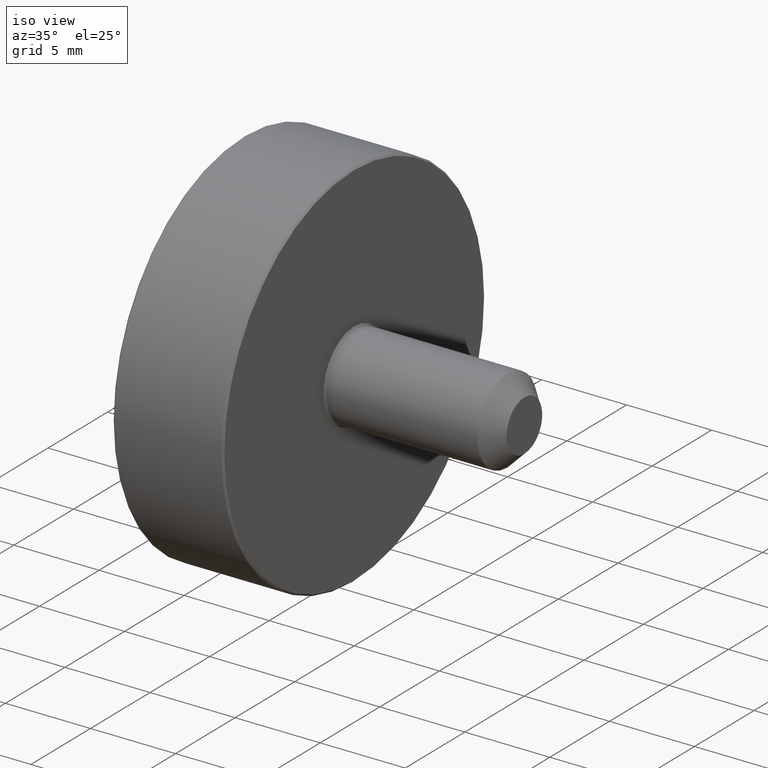
[diagram: clean part render]
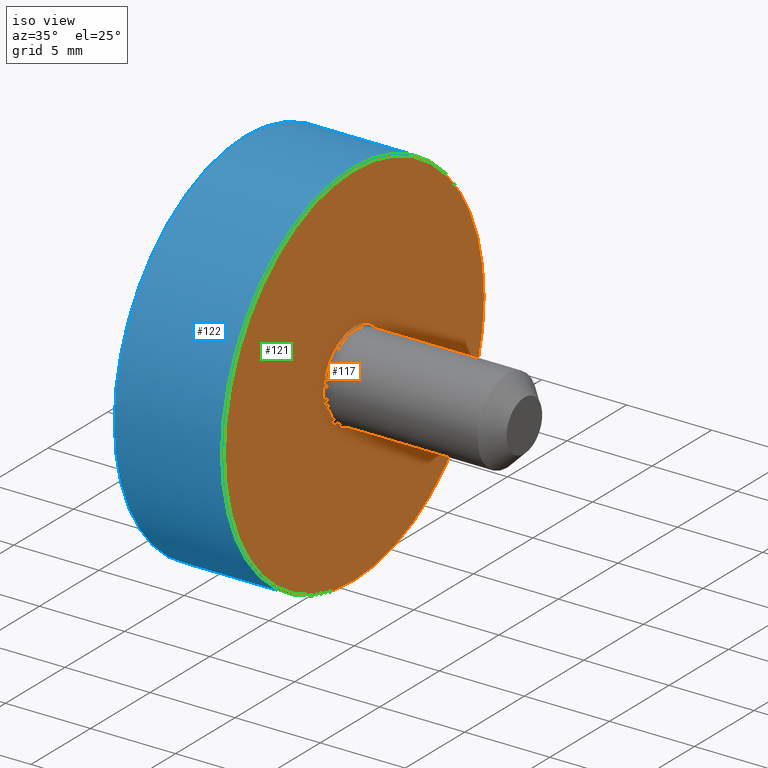
[diagram: same view with three faces highlighted in distinct colors, each labeled with its STEP entity id]
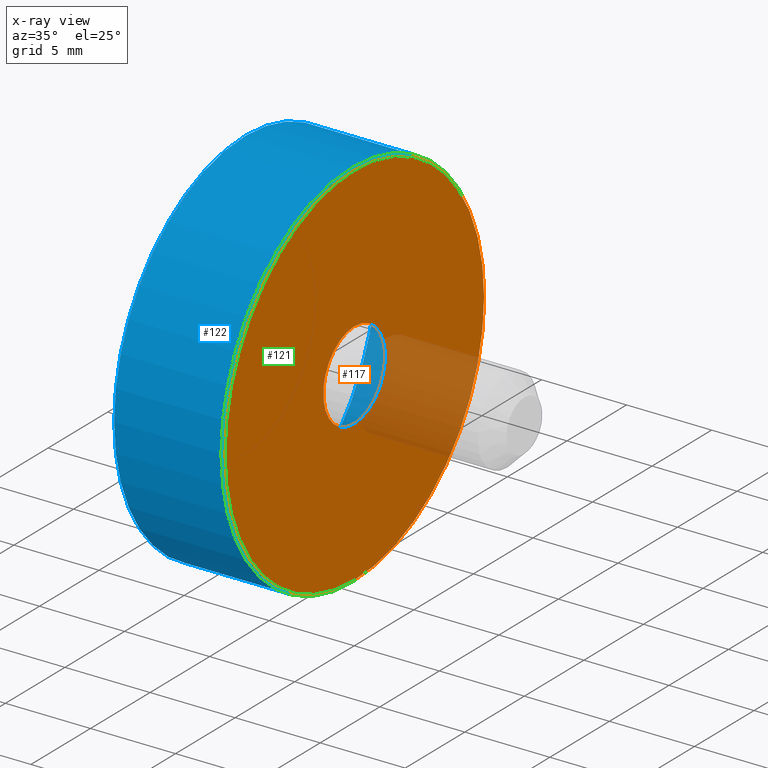
[diagram: x-ray of the same camera — body ghosted, the three highlighted faces saturated]
A machine part, iso view with three faces highlighted in distinct colors.
The next image is the same camera in x-ray (body ghosted, the three faces saturated) — at least one of them is partly hidden behind the body in this view.
Their STEP definitions:

[orange] entity #117 — the highlighted planar face has unit normal (1, 0, 0).
#18=PLANE('',#132);
#23=FACE_BOUND('',#45,.T.);
#32=FACE_OUTER_BOUND('',#44,.T.);
#44=EDGE_LOOP('',(#94));
#45=EDGE_LOOP('',(#95));
#63=CIRCLE('',#131,2.6);
#64=CIRCLE('',#133,10.9);
#73=VERTEX_POINT('',#198);
#74=VERTEX_POINT('',#201);
#83=EDGE_CURVE('',#73,#73,#63,.T.);
#84=EDGE_CURVE('',#74,#74,#64,.T.);
#94=ORIENTED_EDGE('',*,*,#84,.F.);
#95=ORIENTED_EDGE('',*,*,#83,.F.);
#117=ADVANCED_FACE('',(#32,#23),#18,.T.);
#131=AXIS2_PLACEMENT_3D('',#199,#156,#157);
#132=AXIS2_PLACEMENT_3D('',#200,#158,#159);
#133=AXIS2_PLACEMENT_3D('',#202,#160,#161);
#156=DIRECTION('center_axis',(1.,0.,0.));
#157=DIRECTION('ref_axis',(0.,0.,1.));
#158=DIRECTION('center_axis',(1.,0.,0.));
#159=DIRECTION('ref_axis',(0.,0.,-1.));
#160=DIRECTION('center_axis',(-1.,0.,0.));
#161=DIRECTION('ref_axis',(0.,-1.,0.));
#198=CARTESIAN_POINT('',(6.5,3.18408167778312E-16,-2.6));
#199=CARTESIAN_POINT('Origin',(6.5,0.,0.));
#200=CARTESIAN_POINT('Origin',(6.5,-4.48690509505221E-16,1.6821560979169E-16));
#201=CARTESIAN_POINT('',(6.5,10.9,-1.33486501107062E-15));
#202=CARTESIAN_POINT('Origin',(6.5,0.,0.));

[blue] entity #122 — the highlighted cylindrical surface (bore or boss wall) has radius 11 mm, axis along (1, 0, 0).
#17=CYLINDRICAL_SURFACE('',#142,11.);
#27=FACE_BOUND('',#54,.T.);
#37=FACE_OUTER_BOUND('',#53,.T.);
#53=EDGE_LOOP('',(#103));
#54=EDGE_LOOP('',(#104));
#68=CIRCLE('',#141,11.);
#69=CIRCLE('',#143,11.);
#78=VERTEX_POINT('',#213);
#79=VERTEX_POINT('',#216);
#88=EDGE_CURVE('',#78,#78,#68,.T.);
#89=EDGE_CURVE('',#79,#79,#69,.T.);
#103=ORIENTED_EDGE('',*,*,#89,.F.);
#104=ORIENTED_EDGE('',*,*,#88,.F.);
#122=ADVANCED_FACE('',(#37,#27),#17,.T.);
#141=AXIS2_PLACEMENT_3D('',#214,#176,#177);
#142=AXIS2_PLACEMENT_3D('',#215,#178,#179);
#143=AXIS2_PLACEMENT_3D('',#217,#180,#181);
#176=DIRECTION('center_axis',(1.,0.,0.));
#177=DIRECTION('ref_axis',(0.,-1.,0.));
#178=DIRECTION('center_axis',(1.,0.,0.));
#179=DIRECTION('ref_axis',(0.,-1.,0.));
#180=DIRECTION('center_axis',(-1.,0.,0.));
#181=DIRECTION('ref_axis',(0.,-1.,0.));
#213=CARTESIAN_POINT('',(6.4,11.,1.34711147906209E-15));
#214=CARTESIAN_POINT('Origin',(6.4,0.,0.));
#215=CARTESIAN_POINT('Origin',(0.,0.,0.));
#216=CARTESIAN_POINT('',(0.1,11.,-1.34711147906209E-15));
#217=CARTESIAN_POINT('Origin',(0.1,0.,0.));

[green] entity #121 — the highlighted conical surface has half-angle 45 deg.
#26=FACE_BOUND('',#52,.T.);
#36=FACE_OUTER_BOUND('',#51,.T.);
#51=EDGE_LOOP('',(#101));
#52=EDGE_LOOP('',(#102));
#64=CIRCLE('',#133,10.9);
#68=CIRCLE('',#141,11.);
#74=VERTEX_POINT('',#201);
#78=VERTEX_POINT('',#213);
#84=EDGE_CURVE('',#74,#74,#64,.T.);
#88=EDGE_CURVE('',#78,#78,#68,.T.);
#101=ORIENTED_EDGE('',*,*,#88,.T.);
#102=ORIENTED_EDGE('',*,*,#84,.T.);
#113=CONICAL_SURFACE('',#140,10.95,45.);
#121=ADVANCED_FACE('',(#36,#26),#113,.T.);
#133=AXIS2_PLACEMENT_3D('',#202,#160,#161);
#140=AXIS2_PLACEMENT_3D('',#212,#174,#175);
#141=AXIS2_PLACEMENT_3D('',#214,#176,#177);
#160=DIRECTION('center_axis',(-1.,0.,0.));
#161=DIRECTION('ref_axis',(0.,-1.,0.));
#174=DIRECTION('center_axis',(-1.,0.,0.));
#175=DIRECTION('ref_axis',(0.,-1.,0.));
#176=DIRECTION('center_axis',(1.,0.,0.));
#177=DIRECTION('ref_axis',(0.,-1.,0.));
#201=CARTESIAN_POINT('',(6.5,10.9,-1.33486501107062E-15));
#202=CARTESIAN_POINT('Origin',(6.5,0.,0.));
#212=CARTESIAN_POINT('Origin',(6.45,0.,0.));
#213=CARTESIAN_POINT('',(6.4,11.,1.34711147906209E-15));
#214=CARTESIAN_POINT('Origin',(6.4,0.,0.));